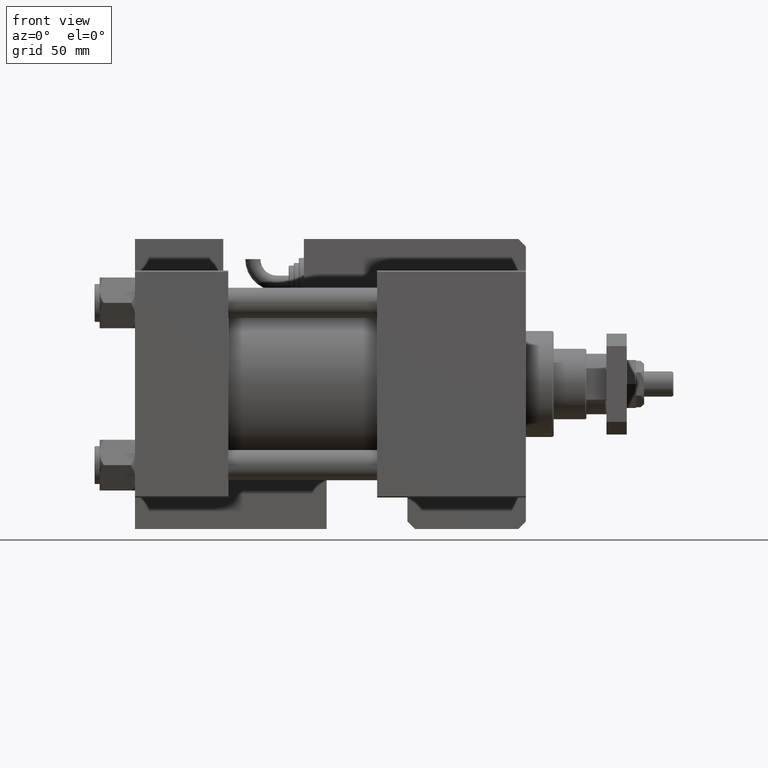
[diagram: clean part render]
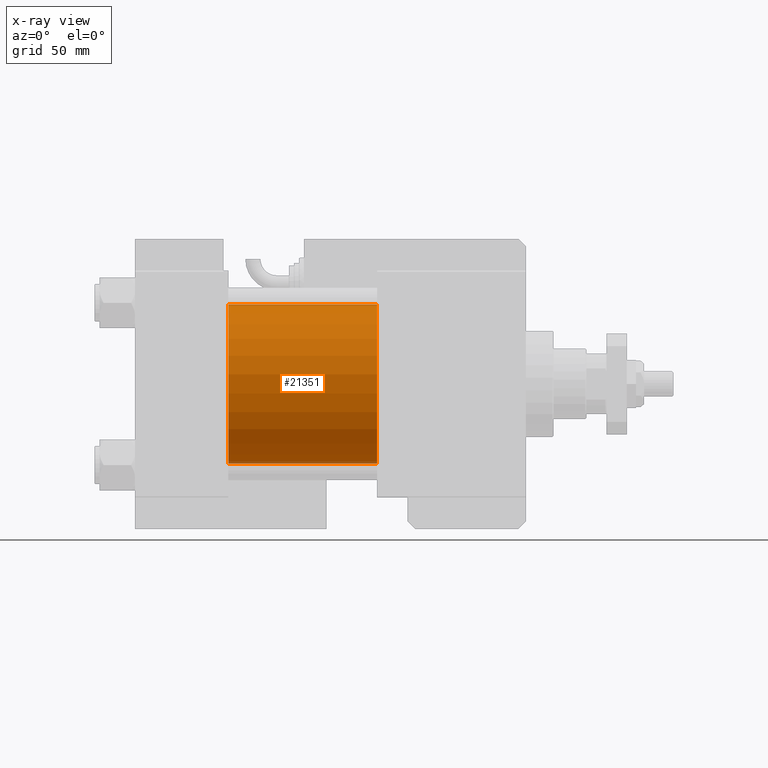
[diagram: x-ray — body ghosted, one internal face saturated and labeled with its STEP entity id]
A machine part, front view, then the same camera in x-ray: the body is ghosted and one INTERNAL B-rep face — a face not visible from any outside direction — is saturated and labeled: STEP entity #21351.
In plain terms, the highlighted cylindrical surface (partial cylindrical patch) has radius 31.5 mm, axis along (-1, -0, -0).
Its self-contained STEP definition (entity closure, byte-faithful):
#107 = EDGE_CURVE ( 'NONE', #42263, #50697, #7025, .T. ) ;
#166 = CARTESIAN_POINT ( 'NONE',  ( 37.00000000000000000, 1.255552203348951850E-15, -31.50000000000000000 ) ) ;
#2805 = DIRECTION ( 'NONE',  ( 0.000000000000000000, 0.000000000000000000, -1.000000000000000000 ) ) ;
#4683 = VECTOR ( 'NONE', #35627, 1000.000000000000000 ) ;
#7025 = CIRCLE ( 'NONE', #16084, 31.50000000000000000 ) ;
#7903 = DIRECTION ( 'NONE',  ( 1.000000000000000000, 0.000000000000000000, 0.000000000000000000 ) ) ;
#12909 = ORIENTED_EDGE ( 'NONE', *, *, #21590, .T. ) ;
#16084 = AXIS2_PLACEMENT_3D ( 'NONE', #31053, #47181, #34752 ) ;
#20145 = CYLINDRICAL_SURFACE ( 'NONE', #49688, 31.50000000000000000 ) ;
#20355 = CARTESIAN_POINT ( 'NONE',  ( 96.00000000000000000, -2.602085213965210642E-15, 0.000000000000000000 ) ) ;
#20506 = ORIENTED_EDGE ( 'NONE', *, *, #107, .F. ) ;
#21351 = ADVANCED_FACE ( 'NONE', ( #38230 ), #20145, .F. ) ;
#21476 = DIRECTION ( 'NONE',  ( -1.000000000000000000, -0.000000000000000000, -0.000000000000000000 ) ) ;
#21590 = EDGE_CURVE ( 'NONE', #28912, #51159, #30739, .T. ) ;
#21724 = EDGE_CURVE ( 'NONE', #28912, #42263, #47736, .T. ) ;
#26856 = LINE ( 'NONE', #39846, #4683 ) ;
#28912 = VERTEX_POINT ( 'NONE', #38930 ) ;
#30739 = CIRCLE ( 'NONE', #54212, 31.50000000000000000 ) ;
#31053 = CARTESIAN_POINT ( 'NONE',  ( 37.00000000000000000, -2.602085213965210642E-15, 0.000000000000000000 ) ) ;
#32876 = ORIENTED_EDGE ( 'NONE', *, *, #21724, .F. ) ;
#34752 = DIRECTION ( 'NONE',  ( 0.000000000000000000, 0.000000000000000000, -1.000000000000000000 ) ) ;
#35627 = DIRECTION ( 'NONE',  ( -1.000000000000000000, -0.000000000000000000, -0.000000000000000000 ) ) ;
#37665 = CARTESIAN_POINT ( 'NONE',  ( 96.00000000000000000, -2.602085213965210642E-15, 0.000000000000000000 ) ) ;
#37998 = CARTESIAN_POINT ( 'NONE',  ( 37.00000000000000000, -2.602085213965210642E-15, 31.50000000000000000 ) ) ;
#38230 = FACE_OUTER_BOUND ( 'NONE', #42453, .T. ) ;
#38930 = CARTESIAN_POINT ( 'NONE',  ( 96.00000000000000000, -2.602085213965210642E-15, 31.50000000000000000 ) ) ;
#39846 = CARTESIAN_POINT ( 'NONE',  ( 96.00000000000000000, 1.255552203348951850E-15, -31.50000000000000000 ) ) ;
#41585 = VECTOR ( 'NONE', #21476, 1000.000000000000000 ) ;
#42174 = DIRECTION ( 'NONE',  ( 0.000000000000000000, 0.000000000000000000, 1.000000000000000000 ) ) ;
#42263 = VERTEX_POINT ( 'NONE', #37998 ) ;
#42453 = EDGE_LOOP ( 'NONE', ( #12909, #54937, #20506, #32876 ) ) ;
#44705 = EDGE_CURVE ( 'NONE', #51159, #50697, #26856, .T. ) ;
#45578 = DIRECTION ( 'NONE',  ( -1.000000000000000000, -0.000000000000000000, -0.000000000000000000 ) ) ;
#47181 = DIRECTION ( 'NONE',  ( 1.000000000000000000, 0.000000000000000000, 0.000000000000000000 ) ) ;
#47190 = CARTESIAN_POINT ( 'NONE',  ( 96.00000000000000000, -2.602085213965210642E-15, 31.50000000000000000 ) ) ;
#47615 = CARTESIAN_POINT ( 'NONE',  ( 96.00000000000000000, 1.255552203348951850E-15, -31.50000000000000000 ) ) ;
#47736 = LINE ( 'NONE', #47190, #41585 ) ;
#49688 = AXIS2_PLACEMENT_3D ( 'NONE', #37665, #45578, #42174 ) ;
#50697 = VERTEX_POINT ( 'NONE', #166 ) ;
#51159 = VERTEX_POINT ( 'NONE', #47615 ) ;
#54212 = AXIS2_PLACEMENT_3D ( 'NONE', #20355, #7903, #2805 ) ;
#54937 = ORIENTED_EDGE ( 'NONE', *, *, #44705, .T. ) ;